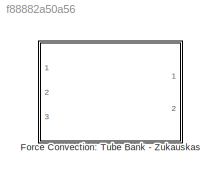
MODEL slx_f88882a50a56
KIND library
CONFIG AbsTol = auto
CONFIG FixedStep = auto
CONFIG MaxStep = auto
CONFIG MinStep = auto
CONFIG RelTol = 1e-3
CONFIG SampleTimeConstraint = Unconstrained
CONFIG Solver = ode45
CONFIG SolverMode = Auto
CONFIG SolverName = ode45
CONFIG StartTime = 0.0
CONFIG StopTime = 10.0
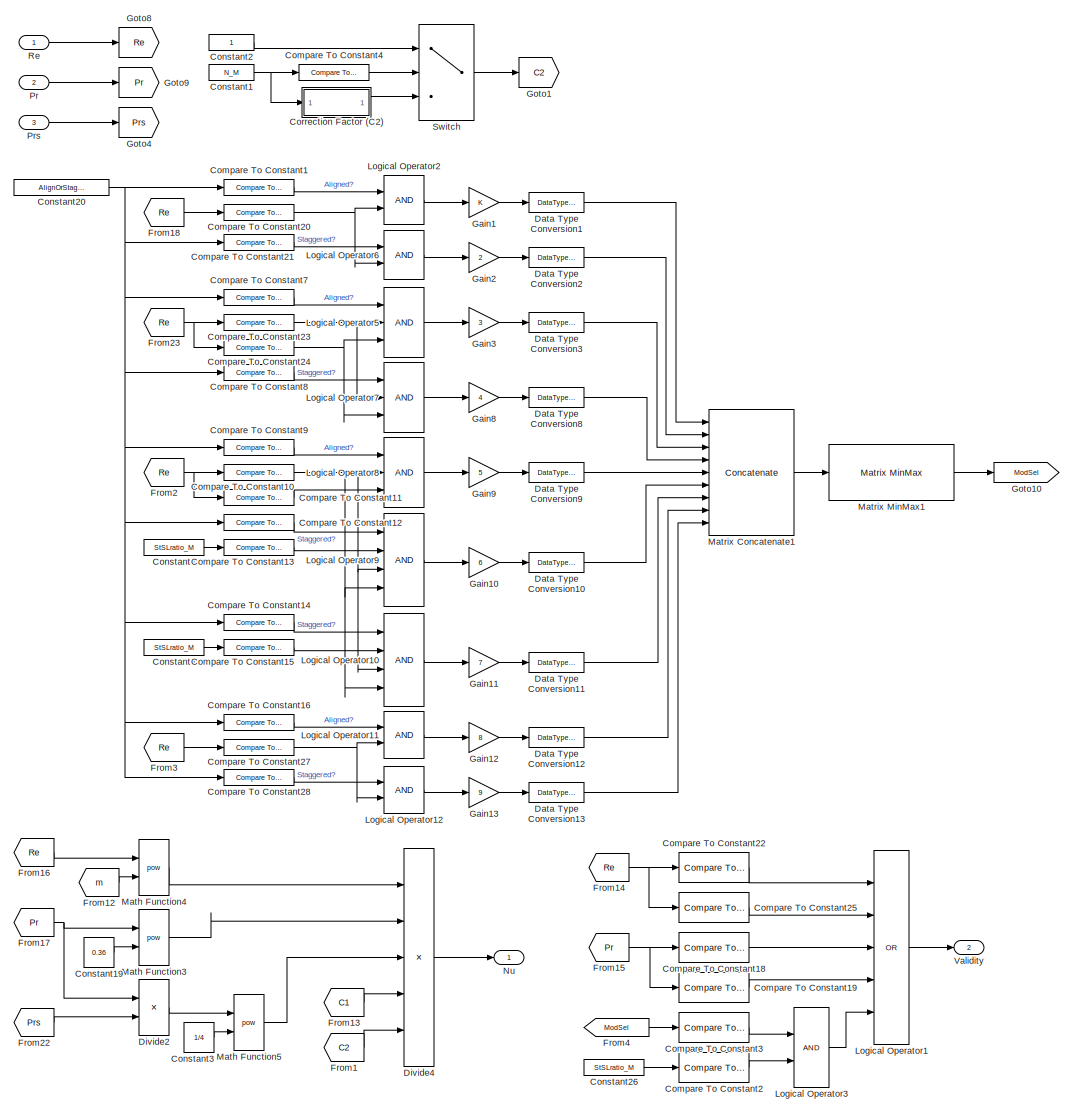
[diagram: Force Convection: Tube Bank - Zukauskas - part 1/2, left side, full height]
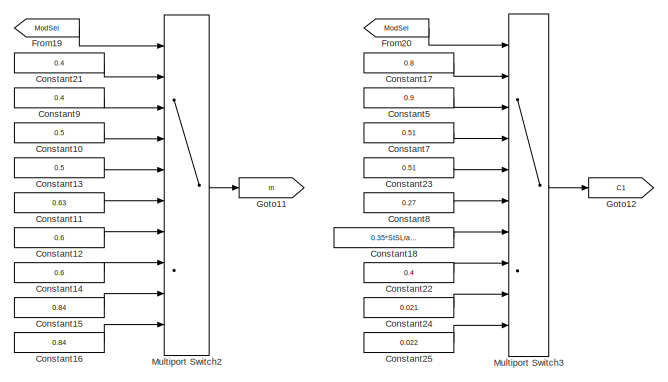
[diagram: Force Convection: Tube Bank - Zukauskas - part 2/2, middle right region]
BLOCK [SubSystem] Force Convection: Tube Bank - Zukauskas
  Ports = [3, 2]
  RequestExecContextInheritance = off
BLOCK [Reference] Force Convection: Tube Bank - Zukauskas/Compare To Constant1  REF=simulink/Logic and Bit
Operations/Compare
To Constant
  OutDataTypeStr = boolean
  Ports = [1, 1]
  SourceBlock = simulink/Logic and Bit\nOperations/Compare\nTo Constant
  SourceType = Compare To Constant
  ZeroCross = on
  const = 0
  relop = >
BLOCK [Reference] Force Convection: Tube Bank - Zukauskas/Compare To Constant10  REF=simulink/Logic and Bit
Operations/Compare
To Constant
  OutDataTypeStr = boolean
  Ports = [1, 1]
  SourceBlock = simulink/Logic and Bit\nOperations/Compare\nTo Constant
  SourceType = Compare To Constant
  ZeroCross = on
  const = 1000
  relop = >=
BLOCK [Reference] Force Convection: Tube Bank - Zukauskas/Compare To Constant11  REF=simulink/Logic and Bit
Operations/Compare
To Constant
  OutDataTypeStr = boolean
  Ports = [1, 1]
  SourceBlock = simulink/Logic and Bit\nOperations/Compare\nTo Constant
  SourceType = Compare To Constant
  ZeroCross = on
  const = 200000
  relop = <
BLOCK [Reference] Force Convection: Tube Bank - Zukauskas/Compare To Constant12  REF=simulink/Logic and Bit
Operations/Compare
To Constant
  OutDataTypeStr = boolean
  Ports = [1, 1]
  SourceBlock = simulink/Logic and Bit\nOperations/Compare\nTo Constant
  SourceType = Compare To Constant
  ZeroCross = on
  const = 1
  relop = <
BLOCK [Reference] Force Convection: Tube Bank - Zukauskas/Compare To Constant13  REF=simulink/Logic and Bit
Operations/Compare
To Constant
  OutDataTypeStr = boolean
  Ports = [1, 1]
  SourceBlock = simulink/Logic and Bit\nOperations/Compare\nTo Constant
  SourceType = Compare To Constant
  ZeroCross = on
  const = 2
  relop = <=
BLOCK [Reference] Force Convection: Tube Bank - Zukauskas/Compare To Constant14  REF=simulink/Logic and Bit
Operations/Compare
To Constant
  OutDataTypeStr = boolean
  Ports = [1, 1]
  SourceBlock = simulink/Logic and Bit\nOperations/Compare\nTo Constant
  SourceType = Compare To Constant
  ZeroCross = on
  const = 1
  relop = <
BLOCK [Reference] Force Convection: Tube Bank - Zukauskas/Compare To Constant15  REF=simulink/Logic and Bit
Operations/Compare
To Constant
  OutDataTypeStr = boolean
  Ports = [1, 1]
  SourceBlock = simulink/Logic and Bit\nOperations/Compare\nTo Constant
  SourceType = Compare To Constant
  ZeroCross = on
  const = 2
  relop = >
BLOCK [Reference] Force Convection: Tube Bank - Zukauskas/Compare To Constant16  REF=simulink/Logic and Bit
Operations/Compare
To Constant
  OutDataTypeStr = boolean
  Ports = [1, 1]
  SourceBlock = simulink/Logic and Bit\nOperations/Compare\nTo Constant
  SourceType = Compare To Constant
  ZeroCross = on
  const = 0
  relop = >
BLOCK [Reference] Force Convection: Tube Bank - Zukauskas/Compare To Constant18  REF=simulink/Logic and Bit
Operations/Compare
To Constant
  OutDataTypeStr = boolean
  Ports = [1, 1]
  SourceBlock = simulink/Logic and Bit\nOperations/Compare\nTo Constant
  SourceType = Compare To Constant
  ZeroCross = on
  const = 0.7
  relop = <
BLOCK [Reference] Force Convection: Tube Bank - Zukauskas/Compare To Constant19  REF=simulink/Logic and Bit
Operations/Compare
To Constant
  OutDataTypeStr = boolean
  Ports = [1, 1]
  SourceBlock = simulink/Logic and Bit\nOperations/Compare\nTo Constant
  SourceType = Compare To Constant
  ZeroCross = on
  const = 500
  relop = >
BLOCK [Reference] Force Convection: Tube Bank - Zukauskas/Compare To Constant2  REF=simulink/Logic and Bit
Operations/Compare
To Constant
  OutDataTypeStr = boolean
  Ports = [1, 1]
  SourceBlock = simulink/Logic and Bit\nOperations/Compare\nTo Constant
  SourceType = Compare To Constant
  ZeroCross = on
  const = 0.7
  relop = <
BLOCK [Reference] Force Convection: Tube Bank - Zukauskas/Compare To Constant20  REF=simulink/Logic and Bit
Operations/Compare
To Constant
  OutDataTypeStr = boolean
  Ports = [1, 1]
  SourceBlock = simulink/Logic and Bit\nOperations/Compare\nTo Constant
  SourceType = Compare To Constant
  ZeroCross = on
  const = 100
  relop = <
BLOCK [Reference] Force Convection: Tube Bank - Zukauskas/Compare To Constant21  REF=simulink/Logic and Bit
Operations/Compare
To Constant
  OutDataTypeStr = boolean
  Ports = [1, 1]
  SourceBlock = simulink/Logic and Bit\nOperations/Compare\nTo Constant
  SourceType = Compare To Constant
  ZeroCross = on
  const = 1
  relop = <
BLOCK [Reference] Force Convection: Tube Bank - Zukauskas/Compare To Constant22  REF=simulink/Logic and Bit
Operations/Compare
To Constant
  OutDataTypeStr = boolean
  Ports = [1, 1]
  SourceBlock = simulink/Logic and Bit\nOperations/Compare\nTo Constant
  SourceType = Compare To Constant
  ZeroCross = on
  const = 10
  relop = <
BLOCK [Reference] Force Convection: Tube Bank - Zukauskas/Compare To Constant23  REF=simulink/Logic and Bit
Operations/Compare
To Constant
  OutDataTypeStr = boolean
  Ports = [1, 1]
  SourceBlock = simulink/Logic and Bit\nOperations/Compare\nTo Constant
  SourceType = Compare To Constant
  ZeroCross = on
  const = 100
  relop = >=
BLOCK [Reference] Force Convection: Tube Bank - Zukauskas/Compare To Constant24  REF=simulink/Logic and Bit
Operations/Compare
To Constant
  OutDataTypeStr = boolean
  Ports = [1, 1]
  SourceBlock = simulink/Logic and Bit\nOperations/Compare\nTo Constant
  SourceType = Compare To Constant
  ZeroCross = on
  const = 1000
  relop = <
BLOCK [Reference] Force Convection: Tube Bank - Zukauskas/Compare To Constant25  REF=simulink/Logic and Bit
Operations/Compare
To Constant
  OutDataTypeStr = boolean
  Ports = [1, 1]
  SourceBlock = simulink/Logic and Bit\nOperations/Compare\nTo Constant
  SourceType = Compare To Constant
  ZeroCross = on
  const = 2000000
  relop = >
BLOCK [Reference] Force Convection: Tube Bank - Zukauskas/Compare To Constant27  REF=simulink/Logic and Bit
Operations/Compare
To Constant
  OutDataTypeStr = boolean
  Ports = [1, 1]
  SourceBlock = simulink/Logic and Bit\nOperations/Compare\nTo Constant
  SourceType = Compare To Constant
  ZeroCross = on
  const = 200000
  relop = >=
BLOCK [Reference] Force Convection: Tube Bank - Zukauskas/Compare To Constant28  REF=simulink/Logic and Bit
Operations/Compare
To Constant
  OutDataTypeStr = boolean
  Ports = [1, 1]
  SourceBlock = simulink/Logic and Bit\nOperations/Compare\nTo Constant
  SourceType = Compare To Constant
  ZeroCross = on
  const = 1
  relop = <
BLOCK [Reference] Force Convection: Tube Bank - Zukauskas/Compare To Constant3  REF=simulink/Logic and Bit
Operations/Compare
To Constant
  OutDataTypeStr = boolean
  Ports = [1, 1]
  SourceBlock = simulink/Logic and Bit\nOperations/Compare\nTo Constant
  SourceType = Compare To Constant
  ZeroCross = on
  const = 5
  relop = ==
BLOCK [Reference] Force Convection: Tube Bank - Zukauskas/Compare To Constant4  REF=simulink/Logic and Bit
Operations/Compare
To Constant
  OutDataTypeStr = boolean
  Ports = [1, 1]
  SourceBlock = simulink/Logic and Bit\nOperations/Compare\nTo Constant
  SourceType = Compare To Constant
  ZeroCross = on
  const = 20
  relop = >=
BLOCK [Reference] Force Convection: Tube Bank - Zukauskas/Compare To Constant7  REF=simulink/Logic and Bit
Operations/Compare
To Constant
  OutDataTypeStr = boolean
  Ports = [1, 1]
  SourceBlock = simulink/Logic and Bit\nOperations/Compare\nTo Constant
  SourceType = Compare To Constant
  ZeroCross = on
  const = 0
  relop = >
BLOCK [Reference] Force Convection: Tube Bank - Zukauskas/Compare To Constant8  REF=simulink/Logic and Bit
Operations/Compare
To Constant
  OutDataTypeStr = boolean
  Ports = [1, 1]
  SourceBlock = simulink/Logic and Bit\nOperations/Compare\nTo Constant
  SourceType = Compare To Constant
  ZeroCross = on
  const = 1
  relop = <
BLOCK [Reference] Force Convection: Tube Bank - Zukauskas/Compare To Constant9  REF=simulink/Logic and Bit
Operations/Compare
To Constant
  OutDataTypeStr = boolean
  Ports = [1, 1]
  SourceBlock = simulink/Logic and Bit\nOperations/Compare\nTo Constant
  SourceType = Compare To Constant
  ZeroCross = on
  const = 0
  relop = >
BLOCK [Constant] Force Convection: Tube Bank - Zukauskas/Constant1
  Value = N_M
BLOCK [Constant] Force Convection: Tube Bank - Zukauskas/Constant10
  Value = 0.5
BLOCK [Constant] Force Convection: Tube Bank - Zukauskas/Constant11
  Value = 0.63
BLOCK [Constant] Force Convection: Tube Bank - Zukauskas/Constant12
  Value = 0.6
BLOCK [Constant] Force Convection: Tube Bank - Zukauskas/Constant13
  Value = 0.5
BLOCK [Constant] Force Convection: Tube Bank - Zukauskas/Constant14
  Value = 0.6
BLOCK [Constant] Force Convection: Tube Bank - Zukauskas/Constant15
  Value = 0.84
BLOCK [Constant] Force Convection: Tube Bank - Zukauskas/Constant16
  Value = 0.84
BLOCK [Constant] Force Convection: Tube Bank - Zukauskas/Constant17
  Value = 0.8
BLOCK [Constant] Force Convection: Tube Bank - Zukauskas/Constant18
  Value = 0.35*StSLratio_M^(1/5)
BLOCK [Constant] Force Convection: Tube Bank - Zukauskas/Constant19
  Value = 0.36
BLOCK [Constant] Force Convection: Tube Bank - Zukauskas/Constant2
BLOCK [Constant] Force Convection: Tube Bank - Zukauskas/Constant20
  Value = AlignOrStag_M
BLOCK [Constant] Force Convection: Tube Bank - Zukauskas/Constant21
  Value = 0.4
BLOCK [Constant] Force Convection: Tube Bank - Zukauskas/Constant22
  Value = 0.4
BLOCK [Constant] Force Convection: Tube Bank - Zukauskas/Constant23
  Value = 0.51
BLOCK [Constant] Force Convection: Tube Bank - Zukauskas/Constant24
  Value = 0.021
BLOCK [Constant] Force Convection: Tube Bank - Zukauskas/Constant25
  Value = 0.022
BLOCK [Constant] Force Convection: Tube Bank - Zukauskas/Constant26
  Value = StSLratio_M
BLOCK [Constant] Force Convection: Tube Bank - Zukauskas/Constant3
  Value = 1/4
BLOCK [Constant] Force Convection: Tube Bank - Zukauskas/Constant4
  Value = StSLratio_M
BLOCK [Constant] Force Convection: Tube Bank - Zukauskas/Constant5
  Value = 0.9
BLOCK [Constant] Force Convection: Tube Bank - Zukauskas/Constant6
  Value = StSLratio_M
BLOCK [Constant] Force Convection: Tube Bank - Zukauskas/Constant7
  Value = 0.51
BLOCK [Constant] Force Convection: Tube Bank - Zukauskas/Constant8
  Value = 0.27
BLOCK [Constant] Force Convection: Tube Bank - Zukauskas/Constant9
  Value = 0.4
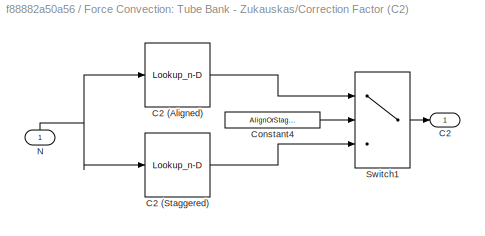
BLOCK [SubSystem] Force Convection: Tube Bank - Zukauskas/Correction Factor (C2)
  Ports = [1, 1]
  RequestExecContextInheritance = off
BLOCK [Outport] Force Convection: Tube Bank - Zukauskas/Correction Factor (C2)/C2
  IconDisplay = Port number
BLOCK [Lookup_n-D] Force Convection: Tube Bank - Zukauskas/Correction Factor (C2)/C2 (Aligned)
  BreakpointsForDimension1 = [1 2 3 4 5 7 10 13 16 20]
  InternalRulePriority = Speed
  NumberOfTableDimensions = 1
  Ports = [1, 1]
  RndMeth = Simplest
  Table = [0.7 0.8 0.86 0.9 0.92 0.95 0.97 0.98 0.99 1]
BLOCK [Lookup_n-D] Force Convection: Tube Bank - Zukauskas/Correction Factor (C2)/C2 (Staggered)
  BreakpointsForDimension1 = [1 2 3 4 5 7 10 13 16 20]
  InternalRulePriority = Speed
  NumberOfTableDimensions = 1
  Ports = [1, 1]
  RndMeth = Simplest
  Table = [0.64 0.76 0.84 0.89 0.92 0.95 0.97 0.98 0.99 1]
BLOCK [Constant] Force Convection: Tube Bank - Zukauskas/Correction Factor (C2)/Constant4
  Value = AlignOrStag_M
BLOCK [Inport] Force Convection: Tube Bank - Zukauskas/Correction Factor (C2)/N
  IconDisplay = Port number
BLOCK [Switch] Force Convection: Tube Bank - Zukauskas/Correction Factor (C2)/Switch1
  Criteria = u2 > Threshold
  InputSameDT = off
  SaturateOnIntegerOverflow = off
BLOCK [DataTypeConversion] Force Convection: Tube Bank - Zukauskas/Data Type Conversion1
  OutDataTypeStr = double
  RndMeth = Floor
  SaturateOnIntegerOverflow = off
BLOCK [DataTypeConversion] Force Convection: Tube Bank - Zukauskas/Data Type Conversion10
  OutDataTypeStr = double
  RndMeth = Floor
  SaturateOnIntegerOverflow = off
BLOCK [DataTypeConversion] Force Convection: Tube Bank - Zukauskas/Data Type Conversion11
  OutDataTypeStr = double
  RndMeth = Floor
  SaturateOnIntegerOverflow = off
BLOCK [DataTypeConversion] Force Convection: Tube Bank - Zukauskas/Data Type Conversion12
  OutDataTypeStr = double
  RndMeth = Floor
  SaturateOnIntegerOverflow = off
BLOCK [DataTypeConversion] Force Convection: Tube Bank - Zukauskas/Data Type Conversion13
  OutDataTypeStr = double
  RndMeth = Floor
  SaturateOnIntegerOverflow = off
BLOCK [DataTypeConversion] Force Convection: Tube Bank - Zukauskas/Data Type Conversion2
  OutDataTypeStr = double
  RndMeth = Floor
  SaturateOnIntegerOverflow = off
BLOCK [DataTypeConversion] Force Convection: Tube Bank - Zukauskas/Data Type Conversion3
  OutDataTypeStr = double
  RndMeth = Floor
  SaturateOnIntegerOverflow = off
BLOCK [DataTypeConversion] Force Convection: Tube Bank - Zukauskas/Data Type Conversion8
  OutDataTypeStr = double
  RndMeth = Floor
  SaturateOnIntegerOverflow = off
BLOCK [DataTypeConversion] Force Convection: Tube Bank - Zukauskas/Data Type Conversion9
  OutDataTypeStr = double
  RndMeth = Floor
  SaturateOnIntegerOverflow = off
BLOCK [Product] Force Convection: Tube Bank - Zukauskas/Divide2
  InputSameDT = off
  Inputs = */
  OutDataTypeStr = Inherit: Inherit via internal rule
  Ports = [2, 1]
  RndMeth = Floor
  SaturateOnIntegerOverflow = off
BLOCK [Product] Force Convection: Tube Bank - Zukauskas/Divide4
  InputSameDT = off
  Inputs = *****
  OutDataTypeStr = Inherit: Inherit via internal rule
  Ports = [5, 1]
  RndMeth = Floor
  SaturateOnIntegerOverflow = off
BLOCK [From] Force Convection: Tube Bank - Zukauskas/From1
  GotoTag = C2
BLOCK [From] Force Convection: Tube Bank - Zukauskas/From12
  GotoTag = m
BLOCK [From] Force Convection: Tube Bank - Zukauskas/From13
  GotoTag = C1
BLOCK [From] Force Convection: Tube Bank - Zukauskas/From14
  GotoTag = Re
BLOCK [From] Force Convection: Tube Bank - Zukauskas/From15
  GotoTag = Pr
BLOCK [From] Force Convection: Tube Bank - Zukauskas/From16
  GotoTag = Re
BLOCK [From] Force Convection: Tube Bank - Zukauskas/From17
  GotoTag = Pr
BLOCK [From] Force Convection: Tube Bank - Zukauskas/From18
  GotoTag = Re
BLOCK [From] Force Convection: Tube Bank - Zukauskas/From19
  GotoTag = ModSel
BLOCK [From] Force Convection: Tube Bank - Zukauskas/From2
  GotoTag = Re
BLOCK [From] Force Convection: Tube Bank - Zukauskas/From20
  GotoTag = ModSel
BLOCK [From] Force Convection: Tube Bank - Zukauskas/From22
  GotoTag = Prs
BLOCK [From] Force Convection: Tube Bank - Zukauskas/From23
  GotoTag = Re
BLOCK [From] Force Convection: Tube Bank - Zukauskas/From3
  GotoTag = Re
BLOCK [From] Force Convection: Tube Bank - Zukauskas/From4
  GotoTag = ModSel
BLOCK [Gain] Force Convection: Tube Bank - Zukauskas/Gain1
  OutDataTypeStr = Inherit: Inherit via internal rule
  ParamDataTypeStr = Inherit: Inherit via internal rule
  SaturateOnIntegerOverflow = off
BLOCK [Gain] Force Convection: Tube Bank - Zukauskas/Gain10
  Gain = 6
  OutDataTypeStr = Inherit: Inherit via internal rule
  ParamDataTypeStr = Inherit: Inherit via internal rule
  SaturateOnIntegerOverflow = off
BLOCK [Gain] Force Convection: Tube Bank - Zukauskas/Gain11
  Gain = 7
  OutDataTypeStr = Inherit: Inherit via internal rule
  ParamDataTypeStr = Inherit: Inherit via internal rule
  SaturateOnIntegerOverflow = off
BLOCK [Gain] Force Convection: Tube Bank - Zukauskas/Gain12
  Gain = 8
  OutDataTypeStr = Inherit: Inherit via internal rule
  ParamDataTypeStr = Inherit: Inherit via internal rule
  SaturateOnIntegerOverflow = off
BLOCK [Gain] Force Convection: Tube Bank - Zukauskas/Gain13
  Gain = 9
  OutDataTypeStr = Inherit: Inherit via internal rule
  ParamDataTypeStr = Inherit: Inherit via internal rule
  SaturateOnIntegerOverflow = off
BLOCK [Gain] Force Convection: Tube Bank - Zukauskas/Gain2
  Gain = 2
  OutDataTypeStr = Inherit: Inherit via internal rule
  ParamDataTypeStr = Inherit: Inherit via internal rule
  SaturateOnIntegerOverflow = off
BLOCK [Gain] Force Convection: Tube Bank - Zukauskas/Gain3
  Gain = 3
  OutDataTypeStr = Inherit: Inherit via internal rule
  ParamDataTypeStr = Inherit: Inherit via internal rule
  SaturateOnIntegerOverflow = off
BLOCK [Gain] Force Convection: Tube Bank - Zukauskas/Gain8
  Gain = 4
  OutDataTypeStr = Inherit: Inherit via internal rule
  ParamDataTypeStr = Inherit: Inherit via internal rule
  SaturateOnIntegerOverflow = off
BLOCK [Gain] Force Convection: Tube Bank - Zukauskas/Gain9
  Gain = 5
  OutDataTypeStr = Inherit: Inherit via internal rule
  ParamDataTypeStr = Inherit: Inherit via internal rule
  SaturateOnIntegerOverflow = off
BLOCK [Goto] Force Convection: Tube Bank - Zukauskas/Goto1
  GotoTag = C2
BLOCK [Goto] Force Convection: Tube Bank - Zukauskas/Goto10
  GotoTag = ModSel
BLOCK [Goto] Force Convection: Tube Bank - Zukauskas/Goto11
  GotoTag = m
BLOCK [Goto] Force Convection: Tube Bank - Zukauskas/Goto12
  GotoTag = C1
BLOCK [Goto] Force Convection: Tube Bank - Zukauskas/Goto4
  GotoTag = Prs
BLOCK [Goto] Force Convection: Tube Bank - Zukauskas/Goto8
  GotoTag = Re
BLOCK [Goto] Force Convection: Tube Bank - Zukauskas/Goto9
  GotoTag = Pr
BLOCK [Logic] Force Convection: Tube Bank - Zukauskas/Logical Operator1
  AllPortsSameDT = off
  Inputs = 5
  Operator = OR
  OutDataTypeStr = boolean
  Ports = [5, 1]
BLOCK [Logic] Force Convection: Tube Bank - Zukauskas/Logical Operator10
  AllPortsSameDT = off
  Inputs = 4
  OutDataTypeStr = boolean
  Ports = [4, 1]
BLOCK [Logic] Force Convection: Tube Bank - Zukauskas/Logical Operator11
  AllPortsSameDT = off
  OutDataTypeStr = boolean
  Ports = [2, 1]
BLOCK [Logic] Force Convection: Tube Bank - Zukauskas/Logical Operator12
  AllPortsSameDT = off
  OutDataTypeStr = boolean
  Ports = [2, 1]
BLOCK [Logic] Force Convection: Tube Bank - Zukauskas/Logical Operator2
  AllPortsSameDT = off
  OutDataTypeStr = boolean
  Ports = [2, 1]
BLOCK [Logic] Force Convection: Tube Bank - Zukauskas/Logical Operator3
  AllPortsSameDT = off
  OutDataTypeStr = boolean
  Ports = [2, 1]
BLOCK [Logic] Force Convection: Tube Bank - Zukauskas/Logical Operator5
  AllPortsSameDT = off
  Inputs = 3
  OutDataTypeStr = boolean
  Ports = [3, 1]
BLOCK [Logic] Force Convection: Tube Bank - Zukauskas/Logical Operator6
  AllPortsSameDT = off
  OutDataTypeStr = boolean
  Ports = [2, 1]
BLOCK [Logic] Force Convection: Tube Bank - Zukauskas/Logical Operator7
  AllPortsSameDT = off
  Inputs = 3
  OutDataTypeStr = boolean
  Ports = [3, 1]
BLOCK [Logic] Force Convection: Tube Bank - Zukauskas/Logical Operator8
  AllPortsSameDT = off
  Inputs = 3
  OutDataTypeStr = boolean
  Ports = [3, 1]
BLOCK [Logic] Force Convection: Tube Bank - Zukauskas/Logical Operator9
  AllPortsSameDT = off
  Inputs = 4
  OutDataTypeStr = boolean
  Ports = [4, 1]
BLOCK [Math] Force Convection: Tube Bank - Zukauskas/Math Function3
  Operator = pow
  Ports = [2, 1]
BLOCK [Math] Force Convection: Tube Bank - Zukauskas/Math Function4
  Operator = pow
  Ports = [2, 1]
BLOCK [Math] Force Convection: Tube Bank - Zukauskas/Math Function5
  Operator = pow
  Ports = [2, 1]
BLOCK [Concatenate] Force Convection: Tube Bank - Zukauskas/Matrix Concatenate1
  ConcatenateDimension = 2
  Mode = Multidimensional array
  NumInputs = 9
  Ports = [9, 1]
BLOCK [Reference] Force Convection: Tube Bank - Zukauskas/Matrix MinMax1  REF=lib_GenTools_MinMax/Matrix MinMax
  BN_M = gcb
  Ports = [1, 1]
  SourceBlock = lib_GenTools_MinMax/Matrix MinMax
  SourceType = TSAT: Matrix MinMax Block
  all_M = off
  cols_M = off
  minmax_M = off
  rows_M = on
BLOCK [MultiPortSwitch] Force Convection: Tube Bank - Zukauskas/Multiport Switch2
  InputSameDT = off
  Inputs = 9
  Ports = [10, 1]
  SaturateOnIntegerOverflow = off
BLOCK [MultiPortSwitch] Force Convection: Tube Bank - Zukauskas/Multiport Switch3
  InputSameDT = off
  Inputs = 9
  Ports = [10, 1]
  SaturateOnIntegerOverflow = off
BLOCK [Outport] Force Convection: Tube Bank - Zukauskas/Nu
  IconDisplay = Port number
BLOCK [Inport] Force Convection: Tube Bank - Zukauskas/Pr
  IconDisplay = Port number
  Port = 2
BLOCK [Inport] Force Convection: Tube Bank - Zukauskas/Prs
  IconDisplay = Port number
  Port = 3
BLOCK [Inport] Force Convection: Tube Bank - Zukauskas/Re
  IconDisplay = Port number
BLOCK [Switch] Force Convection: Tube Bank - Zukauskas/Switch
  Criteria = u2 > Threshold
  InputSameDT = off
  SaturateOnIntegerOverflow = off
BLOCK [Outport] Force Convection: Tube Bank - Zukauskas/Validity
  IconDisplay = Port number
  Port = 2
NET Force Convection: Tube Bank - Zukauskas/Compare To Constant10:1 -> Force Convection: Tube Bank - Zukauskas/Logical Operator10:3, Force Convection: Tube Bank - Zukauskas/Logical Operator10:4, Force Convection: Tube Bank - Zukauskas/Logical Operator8:2, Force Convection: Tube Bank - Zukauskas/Logical Operator9:3, Force Convection: Tube Bank - Zukauskas/Logical Operator9:4
LINE Force Convection: Tube Bank - Zukauskas/Compare To Constant11:1 -> Force Convection: Tube Bank - Zukauskas/Logical Operator8:3
LINE Force Convection: Tube Bank - Zukauskas/Compare To Constant12:1 -> Force Convection: Tube Bank - Zukauskas/Logical Operator9:1
LINE Force Convection: Tube Bank - Zukauskas/Compare To Constant13:1 -> Force Convection: Tube Bank - Zukauskas/Logical Operator9:2
LINE Force Convection: Tube Bank - Zukauskas/Compare To Constant14:1 -> Force Convection: Tube Bank - Zukauskas/Logical Operator10:1
LINE Force Convection: Tube Bank - Zukauskas/Compare To Constant15:1 -> Force Convection: Tube Bank - Zukauskas/Logical Operator10:2
LINE Force Convection: Tube Bank - Zukauskas/Compare To Constant16:1 -> Force Convection: Tube Bank - Zukauskas/Logical Operator11:1
LINE Force Convection: Tube Bank - Zukauskas/Compare To Constant18:1 -> Force Convection: Tube Bank - Zukauskas/Logical Operator1:3
LINE Force Convection: Tube Bank - Zukauskas/Compare To Constant19:1 -> Force Convection: Tube Bank - Zukauskas/Logical Operator1:4
LINE Force Convection: Tube Bank - Zukauskas/Compare To Constant1:1 -> Force Convection: Tube Bank - Zukauskas/Logical Operator2:1
NET Force Convection: Tube Bank - Zukauskas/Compare To Constant20:1 -> Force Convection: Tube Bank - Zukauskas/Logical Operator2:2, Force Convection: Tube Bank - Zukauskas/Logical Operator6:2
LINE Force Convection: Tube Bank - Zukauskas/Compare To Constant21:1 -> Force Convection: Tube Bank - Zukauskas/Logical Operator6:1
LINE Force Convection: Tube Bank - Zukauskas/Compare To Constant22:1 -> Force Convection: Tube Bank - Zukauskas/Logical Operator1:1
NET Force Convection: Tube Bank - Zukauskas/Compare To Constant23:1 -> Force Convection: Tube Bank - Zukauskas/Logical Operator5:2, Force Convection: Tube Bank - Zukauskas/Logical Operator7:2
NET Force Convection: Tube Bank - Zukauskas/Compare To Constant24:1 -> Force Convection: Tube Bank - Zukauskas/Logical Operator5:3, Force Convection: Tube Bank - Zukauskas/Logical Operator7:3
LINE Force Convection: Tube Bank - Zukauskas/Compare To Constant25:1 -> Force Convection: Tube Bank - Zukauskas/Logical Operator1:2
NET Force Convection: Tube Bank - Zukauskas/Compare To Constant27:1 -> Force Convection: Tube Bank - Zukauskas/Logical Operator11:2, Force Convection: Tube Bank - Zukauskas/Logical Operator12:2
LINE Force Convection: Tube Bank - Zukauskas/Compare To Constant28:1 -> Force Convection: Tube Bank - Zukauskas/Logical Operator12:1
LINE Force Convection: Tube Bank - Zukauskas/Compare To Constant2:1 -> Force Convection: Tube Bank - Zukauskas/Logical Operator3:2
LINE Force Convection: Tube Bank - Zukauskas/Compare To Constant3:1 -> Force Convection: Tube Bank - Zukauskas/Logical Operator3:1
LINE Force Convection: Tube Bank - Zukauskas/Compare To Constant4:1 -> Force Convection: Tube Bank - Zukauskas/Switch:2
LINE Force Convection: Tube Bank - Zukauskas/Compare To Constant7:1 -> Force Convection: Tube Bank - Zukauskas/Logical Operator5:1
LINE Force Convection: Tube Bank - Zukauskas/Compare To Constant8:1 -> Force Convection: Tube Bank - Zukauskas/Logical Operator7:1
LINE Force Convection: Tube Bank - Zukauskas/Compare To Constant9:1 -> Force Convection: Tube Bank - Zukauskas/Logical Operator8:1
LINE Force Convection: Tube Bank - Zukauskas/Constant10:1 -> Force Convection: Tube Bank - Zukauskas/Multiport Switch2:4
LINE Force Convection: Tube Bank - Zukauskas/Constant11:1 -> Force Convection: Tube Bank - Zukauskas/Multiport Switch2:6
LINE Force Convection: Tube Bank - Zukauskas/Constant12:1 -> Force Convection: Tube Bank - Zukauskas/Multiport Switch2:7
LINE Force Convection: Tube Bank - Zukauskas/Constant13:1 -> Force Convection: Tube Bank - Zukauskas/Multiport Switch2:5
LINE Force Convection: Tube Bank - Zukauskas/Constant14:1 -> Force Convection: Tube Bank - Zukauskas/Multiport Switch2:8
LINE Force Convection: Tube Bank - Zukauskas/Constant15:1 -> Force Convection: Tube Bank - Zukauskas/Multiport Switch2:9
LINE Force Convection: Tube Bank - Zukauskas/Constant16:1 -> Force Convection: Tube Bank - Zukauskas/Multiport Switch2:10
LINE Force Convection: Tube Bank - Zukauskas/Constant17:1 -> Force Convection: Tube Bank - Zukauskas/Multiport Switch3:2
LINE Force Convection: Tube Bank - Zukauskas/Constant18:1 -> Force Convection: Tube Bank - Zukauskas/Multiport Switch3:7
LINE Force Convection: Tube Bank - Zukauskas/Constant19:1 -> Force Convection: Tube Bank - Zukauskas/Math Function3:2
NET Force Convection: Tube Bank - Zukauskas/Constant1:1 -> Force Convection: Tube Bank - Zukauskas/Compare To Constant4:1, Force Convection: Tube Bank - Zukauskas/Correction Factor (C2):1
NET Force Convection: Tube Bank - Zukauskas/Constant20:1 -> Force Convection: Tube Bank - Zukauskas/Compare To Constant12:1, Force Convection: Tube Bank - Zukauskas/Compare To Constant14:1, Force Convection: Tube Bank - Zukauskas/Compare To Constant16:1, Force Convection: Tube Bank - Zukauskas/Compare To Constant1:1, Force Convection: Tube Bank - Zukauskas/Compare To Constant21:1, Force Convection: Tube Bank - Zukauskas/Compare To Constant28:1, Force Convection: Tube Bank - Zukauskas/Compare To Constant7:1, Force Convection: Tube Bank - Zukauskas/Compare To Constant8:1, Force Convection: Tube Bank - Zukauskas/Compare To Constant9:1
LINE Force Convection: Tube Bank - Zukauskas/Constant21:1 -> Force Convection: Tube Bank - Zukauskas/Multiport Switch2:2
LINE Force Convection: Tube Bank - Zukauskas/Constant22:1 -> Force Convection: Tube Bank - Zukauskas/Multiport Switch3:8
LINE Force Convection: Tube Bank - Zukauskas/Constant23:1 -> Force Convection: Tube Bank - Zukauskas/Multiport Switch3:5
LINE Force Convection: Tube Bank - Zukauskas/Constant24:1 -> Force Convection: Tube Bank - Zukauskas/Multiport Switch3:9
LINE Force Convection: Tube Bank - Zukauskas/Constant25:1 -> Force Convection: Tube Bank - Zukauskas/Multiport Switch3:10
LINE Force Convection: Tube Bank - Zukauskas/Constant26:1 -> Force Convection: Tube Bank - Zukauskas/Compare To Constant2:1
LINE Force Convection: Tube Bank - Zukauskas/Constant2:1 -> Force Convection: Tube Bank - Zukauskas/Switch:1
LINE Force Convection: Tube Bank - Zukauskas/Constant3:1 -> Force Convection: Tube Bank - Zukauskas/Math Function5:2
LINE Force Convection: Tube Bank - Zukauskas/Constant4:1 -> Force Convection: Tube Bank - Zukauskas/Compare To Constant13:1
LINE Force Convection: Tube Bank - Zukauskas/Constant5:1 -> Force Convection: Tube Bank - Zukauskas/Multiport Switch3:3
LINE Force Convection: Tube Bank - Zukauskas/Constant6:1 -> Force Convection: Tube Bank - Zukauskas/Compare To Constant15:1
LINE Force Convection: Tube Bank - Zukauskas/Constant7:1 -> Force Convection: Tube Bank - Zukauskas/Multiport Switch3:4
LINE Force Convection: Tube Bank - Zukauskas/Constant8:1 -> Force Convection: Tube Bank - Zukauskas/Multiport Switch3:6
LINE Force Convection: Tube Bank - Zukauskas/Constant9:1 -> Force Convection: Tube Bank - Zukauskas/Multiport Switch2:3
LINE Force Convection: Tube Bank - Zukauskas/Correction Factor (C2)/C2 (Aligned):1 -> Force Convection: Tube Bank - Zukauskas/Correction Factor (C2)/Switch1:1
LINE Force Convection: Tube Bank - Zukauskas/Correction Factor (C2)/C2 (Staggered):1 -> Force Convection: Tube Bank - Zukauskas/Correction Factor (C2)/Switch1:3
LINE Force Convection: Tube Bank - Zukauskas/Correction Factor (C2)/Constant4:1 -> Force Convection: Tube Bank - Zukauskas/Correction Factor (C2)/Switch1:2
NET Force Convection: Tube Bank - Zukauskas/Correction Factor (C2)/N:1 -> Force Convection: Tube Bank - Zukauskas/Correction Factor (C2)/C2 (Aligned):1, Force Convection: Tube Bank - Zukauskas/Correction Factor (C2)/C2 (Staggered):1
LINE Force Convection: Tube Bank - Zukauskas/Correction Factor (C2)/Switch1:1 -> Force Convection: Tube Bank - Zukauskas/Correction Factor (C2)/C2:1
LINE Force Convection: Tube Bank - Zukauskas/Correction Factor (C2):1 -> Force Convection: Tube Bank - Zukauskas/Switch:3
LINE Force Convection: Tube Bank - Zukauskas/Data Type Conversion10:1 -> Force Convection: Tube Bank - Zukauskas/Matrix Concatenate1:6
LINE Force Convection: Tube Bank - Zukauskas/Data Type Conversion11:1 -> Force Convection: Tube Bank - Zukauskas/Matrix Concatenate1:7
LINE Force Convection: Tube Bank - Zukauskas/Data Type Conversion12:1 -> Force Convection: Tube Bank - Zukauskas/Matrix Concatenate1:8
LINE Force Convection: Tube Bank - Zukauskas/Data Type Conversion13:1 -> Force Convection: Tube Bank - Zukauskas/Matrix Concatenate1:9
LINE Force Convection: Tube Bank - Zukauskas/Data Type Conversion1:1 -> Force Convection: Tube Bank - Zukauskas/Matrix Concatenate1:1
LINE Force Convection: Tube Bank - Zukauskas/Data Type Conversion2:1 -> Force Convection: Tube Bank - Zukauskas/Matrix Concatenate1:2
LINE Force Convection: Tube Bank - Zukauskas/Data Type Conversion3:1 -> Force Convection: Tube Bank - Zukauskas/Matrix Concatenate1:3
LINE Force Convection: Tube Bank - Zukauskas/Data Type Conversion8:1 -> Force Convection: Tube Bank - Zukauskas/Matrix Concatenate1:4
LINE Force Convection: Tube Bank - Zukauskas/Data Type Conversion9:1 -> Force Convection: Tube Bank - Zukauskas/Matrix Concatenate1:5
LINE Force Convection: Tube Bank - Zukauskas/Divide2:1 -> Force Convection: Tube Bank - Zukauskas/Math Function5:1
LINE Force Convection: Tube Bank - Zukauskas/Divide4:1 -> Force Convection: Tube Bank - Zukauskas/Nu:1
LINE Force Convection: Tube Bank - Zukauskas/From12:1 -> Force Convection: Tube Bank - Zukauskas/Math Function4:2
LINE Force Convection: Tube Bank - Zukauskas/From13:1 -> Force Convection: Tube Bank - Zukauskas/Divide4:4
NET Force Convection: Tube Bank - Zukauskas/From14:1 -> Force Convection: Tube Bank - Zukauskas/Compare To Constant22:1, Force Convection: Tube Bank - Zukauskas/Compare To Constant25:1
NET Force Convection: Tube Bank - Zukauskas/From15:1 -> Force Convection: Tube Bank - Zukauskas/Compare To Constant18:1, Force Convection: Tube Bank - Zukauskas/Compare To Constant19:1
LINE Force Convection: Tube Bank - Zukauskas/From16:1 -> Force Convection: Tube Bank - Zukauskas/Math Function4:1
NET Force Convection: Tube Bank - Zukauskas/From17:1 -> Force Convection: Tube Bank - Zukauskas/Divide2:1, Force Convection: Tube Bank - Zukauskas/Math Function3:1
LINE Force Convection: Tube Bank - Zukauskas/From18:1 -> Force Convection: Tube Bank - Zukauskas/Compare To Constant20:1
LINE Force Convection: Tube Bank - Zukauskas/From19:1 -> Force Convection: Tube Bank - Zukauskas/Multiport Switch2:1
LINE Force Convection: Tube Bank - Zukauskas/From1:1 -> Force Convection: Tube Bank - Zukauskas/Divide4:5
LINE Force Convection: Tube Bank - Zukauskas/From20:1 -> Force Convection: Tube Bank - Zukauskas/Multiport Switch3:1
LINE Force Convection: Tube Bank - Zukauskas/From22:1 -> Force Convection: Tube Bank - Zukauskas/Divide2:2
NET Force Convection: Tube Bank - Zukauskas/From23:1 -> Force Convection: Tube Bank - Zukauskas/Compare To Constant23:1, Force Convection: Tube Bank - Zukauskas/Compare To Constant24:1
NET Force Convection: Tube Bank - Zukauskas/From2:1 -> Force Convection: Tube Bank - Zukauskas/Compare To Constant10:1, Force Convection: Tube Bank - Zukauskas/Compare To Constant11:1
LINE Force Convection: Tube Bank - Zukauskas/From3:1 -> Force Convection: Tube Bank - Zukauskas/Compare To Constant27:1
LINE Force Convection: Tube Bank - Zukauskas/From4:1 -> Force Convection: Tube Bank - Zukauskas/Compare To Constant3:1
LINE Force Convection: Tube Bank - Zukauskas/Gain10:1 -> Force Convection: Tube Bank - Zukauskas/Data Type Conversion10:1
LINE Force Convection: Tube Bank - Zukauskas/Gain11:1 -> Force Convection: Tube Bank - Zukauskas/Data Type Conversion11:1
LINE Force Convection: Tube Bank - Zukauskas/Gain12:1 -> Force Convection: Tube Bank - Zukauskas/Data Type Conversion12:1
LINE Force Convection: Tube Bank - Zukauskas/Gain13:1 -> Force Convection: Tube Bank - Zukauskas/Data Type Conversion13:1
LINE Force Convection: Tube Bank - Zukauskas/Gain1:1 -> Force Convection: Tube Bank - Zukauskas/Data Type Conversion1:1
LINE Force Convection: Tube Bank - Zukauskas/Gain2:1 -> Force Convection: Tube Bank - Zukauskas/Data Type Conversion2:1
LINE Force Convection: Tube Bank - Zukauskas/Gain3:1 -> Force Convection: Tube Bank - Zukauskas/Data Type Conversion3:1
LINE Force Convection: Tube Bank - Zukauskas/Gain8:1 -> Force Convection: Tube Bank - Zukauskas/Data Type Conversion8:1
LINE Force Convection: Tube Bank - Zukauskas/Gain9:1 -> Force Convection: Tube Bank - Zukauskas/Data Type Conversion9:1
LINE Force Convection: Tube Bank - Zukauskas/Logical Operator10:1 -> Force Convection: Tube Bank - Zukauskas/Gain11:1
LINE Force Convection: Tube Bank - Zukauskas/Logical Operator11:1 -> Force Convection: Tube Bank - Zukauskas/Gain12:1
LINE Force Convection: Tube Bank - Zukauskas/Logical Operator12:1 -> Force Convection: Tube Bank - Zukauskas/Gain13:1
LINE Force Convection: Tube Bank - Zukauskas/Logical Operator1:1 -> Force Convection: Tube Bank - Zukauskas/Validity:1
LINE Force Convection: Tube Bank - Zukauskas/Logical Operator2:1 -> Force Convection: Tube Bank - Zukauskas/Gain1:1
LINE Force Convection: Tube Bank - Zukauskas/Logical Operator3:1 -> Force Convection: Tube Bank - Zukauskas/Logical Operator1:5
LINE Force Convection: Tube Bank - Zukauskas/Logical Operator5:1 -> Force Convection: Tube Bank - Zukauskas/Gain3:1
LINE Force Convection: Tube Bank - Zukauskas/Logical Operator6:1 -> Force Convection: Tube Bank - Zukauskas/Gain2:1
LINE Force Convection: Tube Bank - Zukauskas/Logical Operator7:1 -> Force Convection: Tube Bank - Zukauskas/Gain8:1
LINE Force Convection: Tube Bank - Zukauskas/Logical Operator8:1 -> Force Convection: Tube Bank - Zukauskas/Gain9:1
LINE Force Convection: Tube Bank - Zukauskas/Logical Operator9:1 -> Force Convection: Tube Bank - Zukauskas/Gain10:1
LINE Force Convection: Tube Bank - Zukauskas/Math Function3:1 -> Force Convection: Tube Bank - Zukauskas/Divide4:2
LINE Force Convection: Tube Bank - Zukauskas/Math Function4:1 -> Force Convection: Tube Bank - Zukauskas/Divide4:1
LINE Force Convection: Tube Bank - Zukauskas/Math Function5:1 -> Force Convection: Tube Bank - Zukauskas/Divide4:3
LINE Force Convection: Tube Bank - Zukauskas/Matrix Concatenate1:1 -> Force Convection: Tube Bank - Zukauskas/Matrix MinMax1:1
LINE Force Convection: Tube Bank - Zukauskas/Matrix MinMax1:1 -> Force Convection: Tube Bank - Zukauskas/Goto10:1
LINE Force Convection: Tube Bank - Zukauskas/Multiport Switch2:1 -> Force Convection: Tube Bank - Zukauskas/Goto11:1
LINE Force Convection: Tube Bank - Zukauskas/Multiport Switch3:1 -> Force Convection: Tube Bank - Zukauskas/Goto12:1
LINE Force Convection: Tube Bank - Zukauskas/Pr:1 -> Force Convection: Tube Bank - Zukauskas/Goto9:1
LINE Force Convection: Tube Bank - Zukauskas/Prs:1 -> Force Convection: Tube Bank - Zukauskas/Goto4:1
LINE Force Convection: Tube Bank - Zukauskas/Re:1 -> Force Convection: Tube Bank - Zukauskas/Goto8:1
LINE Force Convection: Tube Bank - Zukauskas/Switch:1 -> Force Convection: Tube Bank - Zukauskas/Goto1:1
note: NET lines group one-source signal fan-out (src -> all destinations, sorted); 1:1 wires keep LINE
